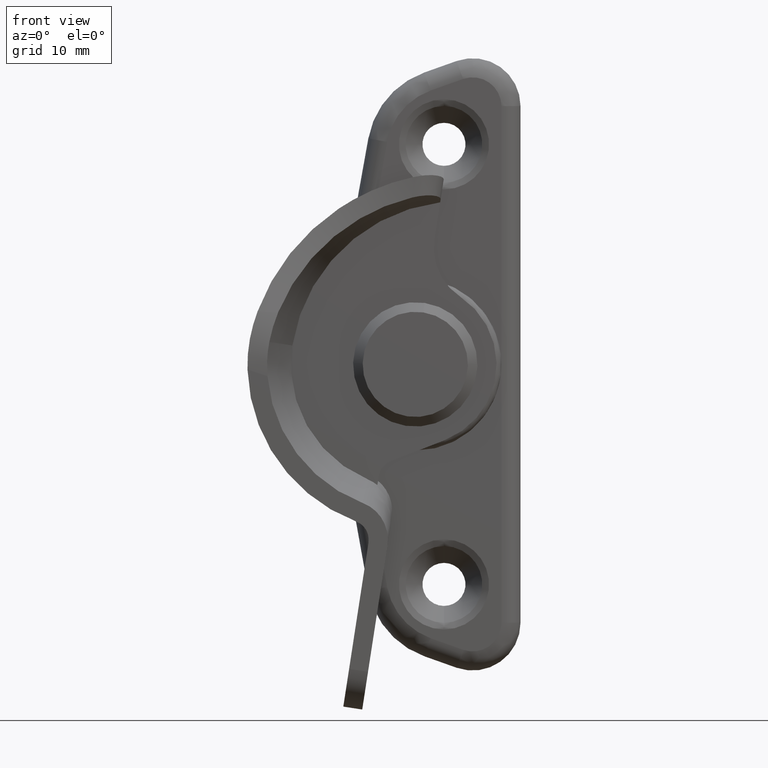
[diagram: clean part render]
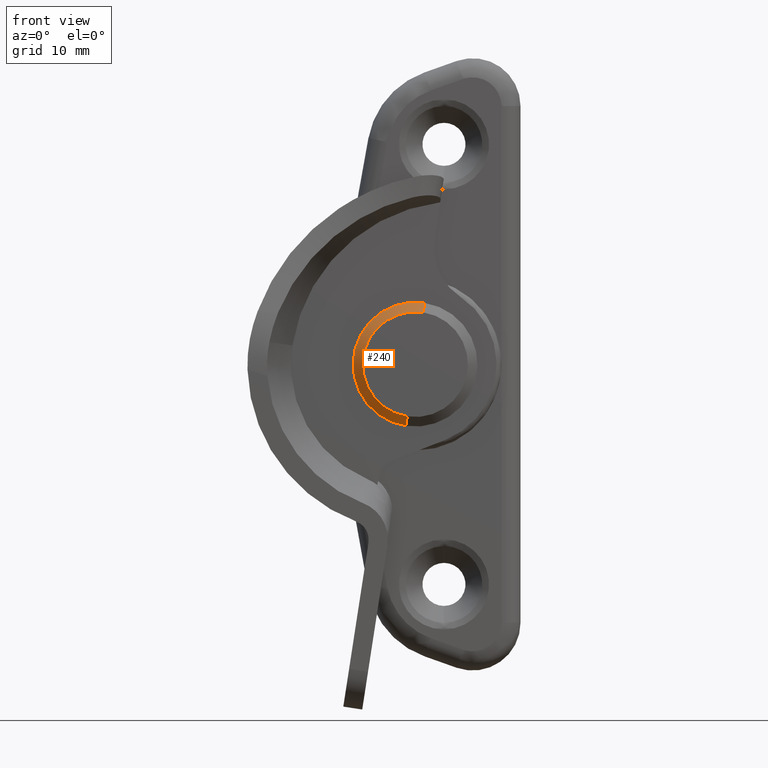
[diagram: same view with one face highlighted and labeled with its STEP entity id]
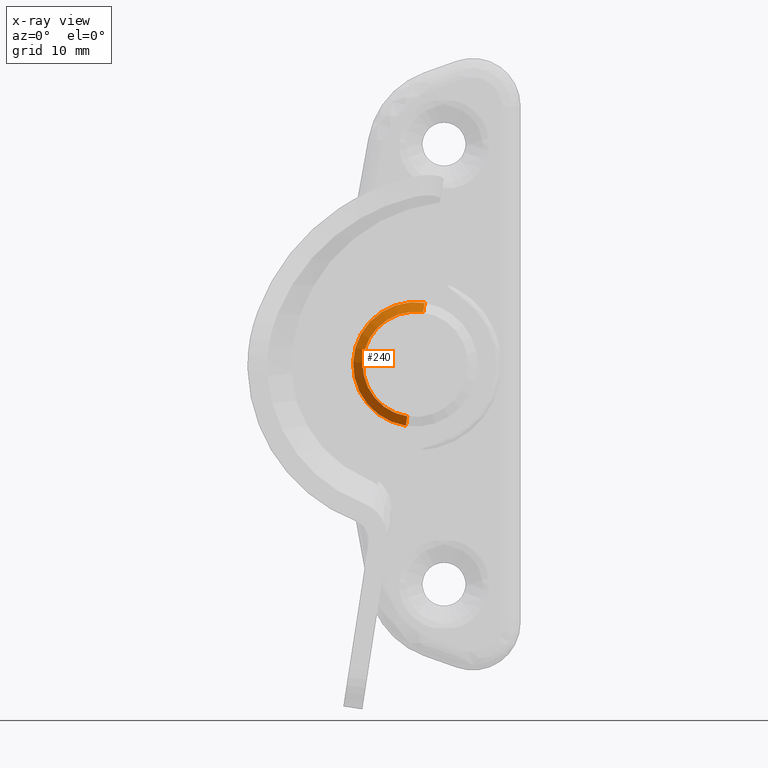
[diagram: x-ray of the same camera — body ghosted, the highlighted face saturated]
A machine part, front view. The second image highlights one B-rep face of the part: STEP entity #240.
The next image is the same camera in x-ray: the body ghosted, the highlighted face saturated — about 0% of this face is hidden behind the body in this view.
In plain terms, the highlighted face is a freeform B-spline surface patch.
Its self-contained STEP definition (entity closure, byte-faithful):
#240=ADVANCED_FACE('',(#1248),#1247,.T.);
#1247=( BOUNDED_SURFACE() B_SPLINE_SURFACE( 2,1,((#2864,#2865),(#2866,#2867),(#2868,#2869),(#2870,#2871),(#2872,#2873)), .UNSPECIFIED.,.F.,.F.,.F.) B_SPLINE_SURFACE_WITH_KNOTS((3,2,3),(2,2),(0.00000000000E+00,5.00000000000E-01,1.00000000000E+00),(0.00000000000E+00,1.00000000000E+00), .UNSPECIFIED. ) GEOMETRIC_REPRESENTATION_ITEM() RATIONAL_B_SPLINE_SURFACE(((1.00000000000E+00,1.00000000000E+00),(7.07106781187E-01,7.07106781187E-01),(1.00000000000E+00,1.00000000000E+00),(7.07106781187E-01,7.07106781187E-01),(1.00000000000E+00,1.00000000000E+00))) REPRESENTATION_ITEM('') SURFACE() );
#1248=FACE_OUTER_BOUND('',#2874,.T.);
#2864=CARTESIAN_POINT('',(-2.28355306072E+01,-2.50000000000E+00,-5.43616488025E+00));
#2865=CARTESIAN_POINT('',(-2.29874452630E+01,-1.50000000000E+00,-6.42455849483E+00));
#2866=CARTESIAN_POINT('',(-2.82716954873E+01,-2.50000000000E+00,-4.60063427317E+00));
#2867=CARTESIAN_POINT('',(-2.94120037578E+01,-1.50000000000E+00,-5.43711323192E+00));
#2868=CARTESIAN_POINT('',(-2.74361648803E+01,-2.50000000000E+00,8.35530607019E-01));
#2869=CARTESIAN_POINT('',(-2.84245584949E+01,-1.50000000000E+00,9.87445262852E-01));
#2870=CARTESIAN_POINT('',(-2.66006342732E+01,-2.50000000000E+00,6.27169548721E+00));
#2871=CARTESIAN_POINT('',(-2.74371132319E+01,-1.50000000000E+00,7.41200375762E+00));
#2872=CARTESIAN_POINT('',(-2.11644693930E+01,-2.50000000000E+00,5.43616488013E+00));
#2873=CARTESIAN_POINT('',(-2.10125547372E+01,-1.50000000000E+00,6.42455849471E+00));
#2874=EDGE_LOOP('',(#4388,#4389,#4390,#4391));
#4388=ORIENTED_EDGE('',*,*,#5051,.T.);
#4389=ORIENTED_EDGE('',*,*,#5052,.F.);
#4390=ORIENTED_EDGE('',*,*,#4978,.T.);
#4391=ORIENTED_EDGE('',*,*,#5053,.T.);
#4978=EDGE_CURVE('',#6446,#6447,#6448,.T.);
#5051=EDGE_CURVE('',#6898,#6897,#6917,.T.);
#5052=EDGE_CURVE('',#6446,#6897,#6923,.T.);
#5053=EDGE_CURVE('',#6447,#6898,#6929,.T.);
#6446=VERTEX_POINT('',#9161);
#6447=VERTEX_POINT('',#9162);
#6448=CIRCLE('',#9166,5.50000000000E+00);
#6897=VERTEX_POINT('',#9425);
#6898=VERTEX_POINT('',#9426);
#6917=CIRCLE('',#9438,6.50000000000E+00);
#6923=(BOUNDED_CURVE() B_SPLINE_CURVE(1,(#9439,#9440),.UNSPECIFIED.,.F.,.F.) B_SPLINE_CURVE_WITH_KNOTS((2,2),(0.00000000000E+00,1.00000000000E+00),.UNSPECIFIED.) CURVE() GEOMETRIC_REPRESENTATION_ITEM() RATIONAL_B_SPLINE_CURVE((1.00000000000E+00,1.00000000000E+00)) REPRESENTATION_ITEM('') );
#6929=(BOUNDED_CURVE() B_SPLINE_CURVE(1,(#9441,#9442),.UNSPECIFIED.,.F.,.F.) B_SPLINE_CURVE_WITH_KNOTS((2,2),(0.00000000000E+00,1.00000000000E+00),.UNSPECIFIED.) CURVE() GEOMETRIC_REPRESENTATION_ITEM() RATIONAL_B_SPLINE_CURVE((7.50000000000E-01,7.50000000000E-01)) REPRESENTATION_ITEM('') );
#9161=CARTESIAN_POINT('',(-2.28355306072E+01,-2.50000000000E+00,-5.43616488025E+00));
#9162=CARTESIAN_POINT('',(-2.11644693930E+01,-2.50000000000E+00,5.43616488013E+00));
#9163=CARTESIAN_POINT('',(-2.20000000001E+01,-2.50000000000E+00,-5.79137481327E-11));
#9164=DIRECTION('',(0.00000000000E+00,1.00000000000E+00,-0.00000000000E+00));
#9165=DIRECTION('',(1.51914655832E-01,0.00000000000E+00,9.88393614580E-01));
#9166=AXIS2_PLACEMENT_3D('',#9163,#9164,#9165);
#9425=CARTESIAN_POINT('',(-2.29874452630E+01,-1.50000000000E+00,-6.42455849483E+00));
#9426=CARTESIAN_POINT('',(-2.10125547372E+01,-1.50000000000E+00,6.42455849471E+00));
#9435=CARTESIAN_POINT('',(-2.20000000001E+01,-1.50000000000E+00,-5.79137481327E-11));
#9436=DIRECTION('',(-0.00000000000E+00,-1.00000000000E+00,0.00000000000E+00));
#9437=DIRECTION('',(-1.51914655832E-01,0.00000000000E+00,-9.88393614580E-01));
#9438=AXIS2_PLACEMENT_3D('',#9435,#9436,#9437);
#9439=CARTESIAN_POINT('',(-2.28355306072E+01,-2.50000000000E+00,-5.43616488025E+00));
#9440=CARTESIAN_POINT('',(-2.29874452630E+01,-1.50000000000E+00,-6.42455849483E+00));
#9441=CARTESIAN_POINT('',(-2.11644693930E+01,-2.50000000000E+00,5.43616488013E+00));
#9442=CARTESIAN_POINT('',(-2.10125547372E+01,-1.50000000000E+00,6.42455849471E+00));